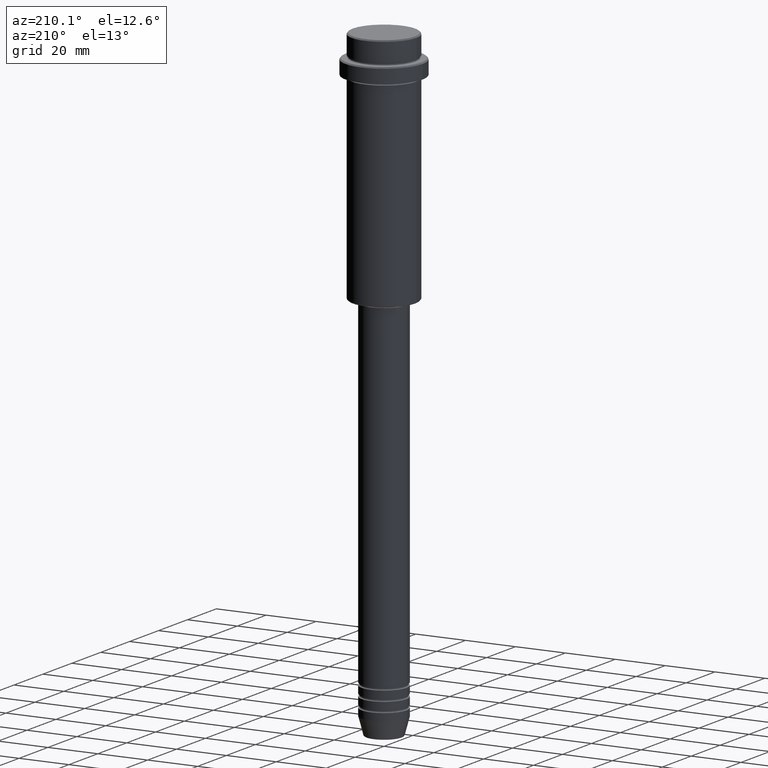
[diagram: clean part render]
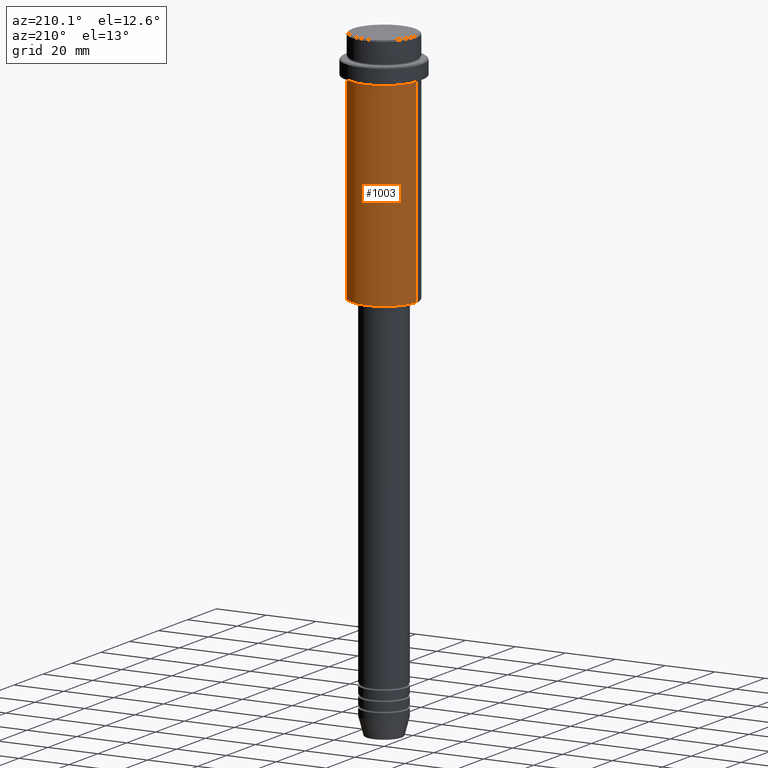
[diagram: same view with one face highlighted and labeled with its STEP entity id]
A machine part, auxiliary view. The second image highlights one B-rep face of the part: STEP entity #1003.
In plain terms, the highlighted cylindrical surface (partial cylindrical patch) has radius 13 mm, axis along (-0, -0, 1).
Its self-contained STEP definition (entity closure, byte-faithful):
#26 = DIRECTION ( 'NONE',  ( -1.000000000000000000, 0.000000000000000000, 0.000000000000000000 ) ) ;
#54 = VERTEX_POINT ( 'NONE', #960 ) ;
#87 = EDGE_LOOP ( 'NONE', ( #1135, #507, #655, #596 ) ) ;
#92 = CARTESIAN_POINT ( 'NONE',  ( 13.00000000000000000, 0.000000000000000000, -94.50000000000000000 ) ) ;
#142 = DIRECTION ( 'NONE',  ( -0.000000000000000000, -0.000000000000000000, 1.000000000000000000 ) ) ;
#177 = CARTESIAN_POINT ( 'NONE',  ( 0.000000000000000000, 0.000000000000000000, 0.000000000000000000 ) ) ;
#224 = EDGE_CURVE ( 'NONE', #821, #1252, #714, .T. ) ;
#404 = FACE_OUTER_BOUND ( 'NONE', #87, .T. ) ;
#422 = AXIS2_PLACEMENT_3D ( 'NONE', #572, #901, #26 ) ;
#454 = CARTESIAN_POINT ( 'NONE',  ( -13.00000000000000000, 1.592040838891559095E-15, -94.50000000000000000 ) ) ;
#507 = ORIENTED_EDGE ( 'NONE', *, *, #878, .T. ) ;
#524 = DIRECTION ( 'NONE',  ( -0.000000000000000000, -0.000000000000000000, 1.000000000000000000 ) ) ;
#569 = LINE ( 'NONE', #1240, #601 ) ;
#572 = CARTESIAN_POINT ( 'NONE',  ( 0.000000000000000000, 0.000000000000000000, -94.50000000000000000 ) ) ;
#596 = ORIENTED_EDGE ( 'NONE', *, *, #224, .F. ) ;
#601 = VECTOR ( 'NONE', #142, 1000.000000000000000 ) ;
#655 = ORIENTED_EDGE ( 'NONE', *, *, #1169, .F. ) ;
#657 = CARTESIAN_POINT ( 'NONE',  ( 0.000000000000000000, 0.000000000000000000, -16.00000000000000000 ) ) ;
#714 = LINE ( 'NONE', #1015, #1266 ) ;
#821 = VERTEX_POINT ( 'NONE', #92 ) ;
#844 = EDGE_CURVE ( 'NONE', #821, #877, #1170, .T. ) ;
#848 = AXIS2_PLACEMENT_3D ( 'NONE', #177, #524, #959 ) ;
#877 = VERTEX_POINT ( 'NONE', #454 ) ;
#878 = EDGE_CURVE ( 'NONE', #877, #54, #569, .T. ) ;
#901 = DIRECTION ( 'NONE',  ( -0.000000000000000000, -0.000000000000000000, 1.000000000000000000 ) ) ;
#932 = CYLINDRICAL_SURFACE ( 'NONE', #848, 13.00000000000000000 ) ;
#945 = CIRCLE ( 'NONE', #1008, 13.00000000000000000 ) ;
#959 = DIRECTION ( 'NONE',  ( 1.000000000000000000, 0.000000000000000000, 0.000000000000000000 ) ) ;
#960 = CARTESIAN_POINT ( 'NONE',  ( -13.00000000000000000, 1.592040838891559095E-15, -16.00000000000000000 ) ) ;
#978 = DIRECTION ( 'NONE',  ( 1.000000000000000000, 0.000000000000000000, 0.000000000000000000 ) ) ;
#1003 = ADVANCED_FACE ( 'NONE', ( #404 ), #932, .T. ) ;
#1008 = AXIS2_PLACEMENT_3D ( 'NONE', #657, #1321, #978 ) ;
#1015 = CARTESIAN_POINT ( 'NONE',  ( 13.00000000000000000, 0.000000000000000000, 0.000000000000000000 ) ) ;
#1135 = ORIENTED_EDGE ( 'NONE', *, *, #844, .T. ) ;
#1169 = EDGE_CURVE ( 'NONE', #1252, #54, #945, .T. ) ;
#1170 = CIRCLE ( 'NONE', #422, 13.00000000000000000 ) ;
#1231 = DIRECTION ( 'NONE',  ( -0.000000000000000000, -0.000000000000000000, 1.000000000000000000 ) ) ;
#1235 = CARTESIAN_POINT ( 'NONE',  ( 13.00000000000000000, 0.000000000000000000, -16.00000000000000000 ) ) ;
#1240 = CARTESIAN_POINT ( 'NONE',  ( -13.00000000000000000, 1.592040838891559095E-15, 0.000000000000000000 ) ) ;
#1252 = VERTEX_POINT ( 'NONE', #1235 ) ;
#1266 = VECTOR ( 'NONE', #1231, 1000.000000000000000 ) ;
#1321 = DIRECTION ( 'NONE',  ( -0.000000000000000000, -0.000000000000000000, 1.000000000000000000 ) ) ;